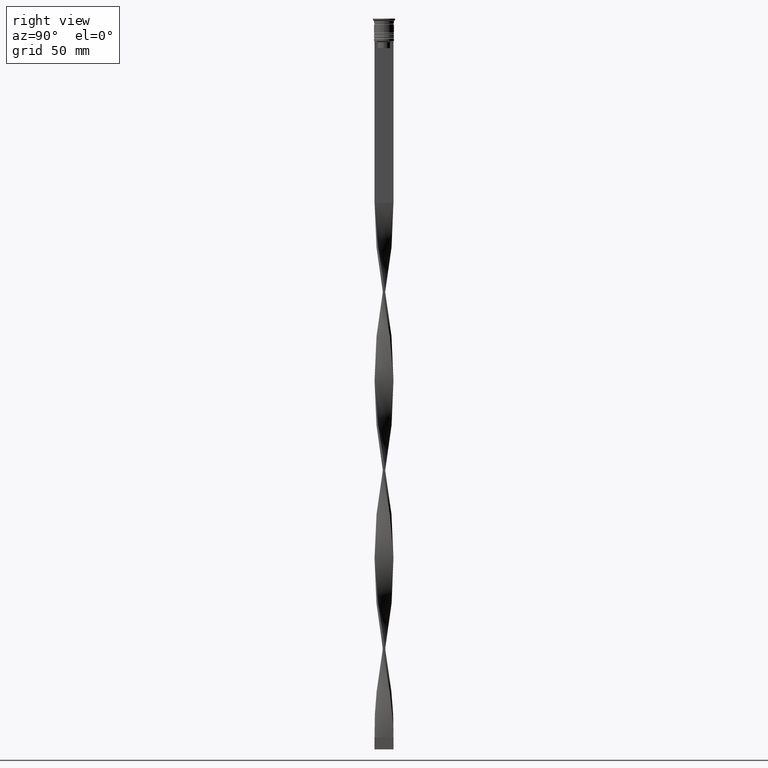
[diagram: clean part render]
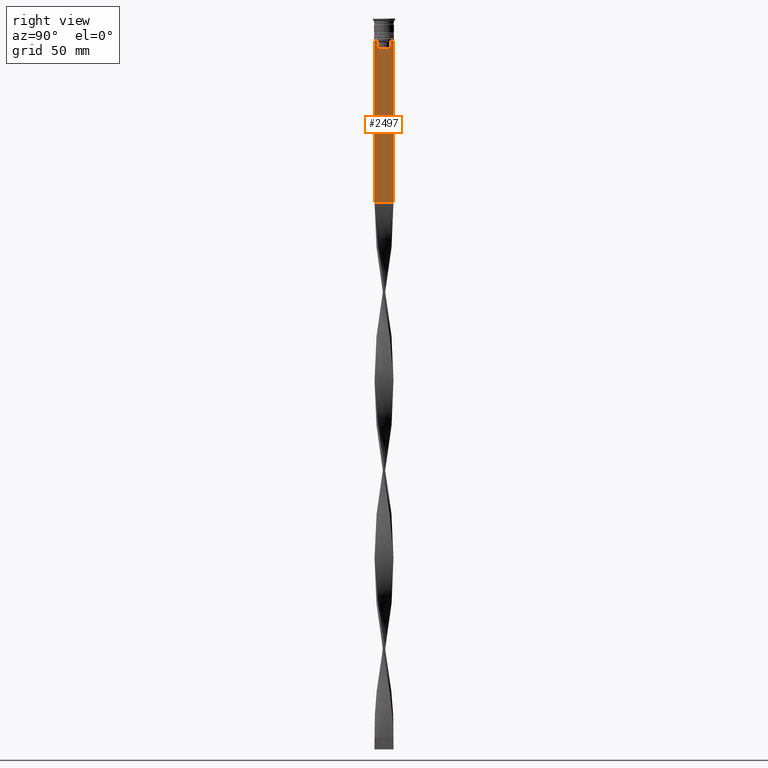
[diagram: same view with one face highlighted and labeled with its STEP entity id]
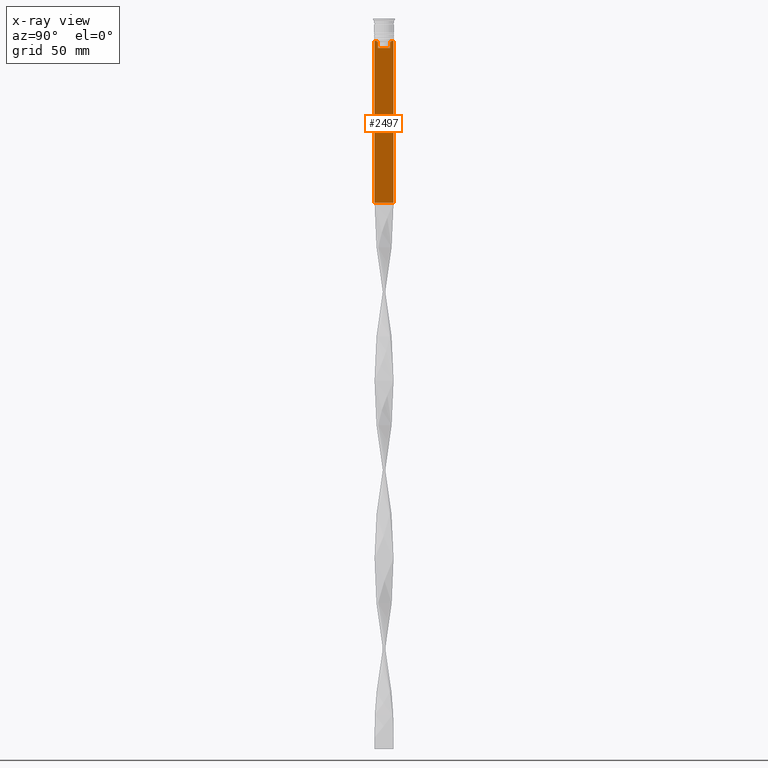
[diagram: x-ray of the same camera — body ghosted, the highlighted face saturated]
A machine part, right view. The second image highlights one B-rep face of the part: STEP entity #2497.
The next image is the same camera in x-ray: the body ghosted, the highlighted face saturated — about 0% of this face is hidden behind the body in this view.
In plain terms, the highlighted planar face has unit normal (-1, 0, 0).
Its self-contained STEP definition (entity closure, byte-faithful):
#41 = VECTOR ( 'NONE', #2729, 1000.000000000000000 ) ;
#84 = VECTOR ( 'NONE', #2466, 1000.000000000000000 ) ;
#90 = VECTOR ( 'NONE', #575, 1000.000000000000000 ) ;
#111 = LINE ( 'NONE', #2565, #3903 ) ;
#117 = VERTEX_POINT ( 'NONE', #3061 ) ;
#184 = ORIENTED_EDGE ( 'NONE', *, *, #1666, .T. ) ;
#235 = DIRECTION ( 'NONE',  ( 0.000000000000000000, -1.000000000000000000, 0.000000000000000000 ) ) ;
#252 = CARTESIAN_POINT ( 'NONE',  ( 0.5000000000000000000, -4.000000000000000000, -9.500000000000000000 ) ) ;
#260 = DIRECTION ( 'NONE',  ( -0.000000000000000000, -0.000000000000000000, 1.000000000000000000 ) ) ;
#278 = VERTEX_POINT ( 'NONE', #634 ) ;
#297 = VERTEX_POINT ( 'NONE', #651 ) ;
#314 = B_SPLINE_CURVE_WITH_KNOTS ( 'NONE', 3,
 ( #2773, #1593, #2230, #595 ),
 .UNSPECIFIED., .F., .F.,
 ( 4, 4 ),
 ( 0.005378271293598279809, 0.006090816219555997280 ),
 .UNSPECIFIED. ) ;
#317 = PLANE ( 'NONE',  #1192 ) ;
#353 = DIRECTION ( 'NONE',  ( 0.000000000000000000, 1.000000000000000000, 0.000000000000000000 ) ) ;
#535 = EDGE_CURVE ( 'NONE', #585, #815, #3777, .T. ) ;
#575 = DIRECTION ( 'NONE',  ( 0.000000000000000000, 0.000000000000000000, -1.000000000000000000 ) ) ;
#585 = VERTEX_POINT ( 'NONE', #2630 ) ;
#595 = CARTESIAN_POINT ( 'NONE',  ( 0.5000000000000000000, 2.602402735934616906, -10.00000000000000178 ) ) ;
#619 = CARTESIAN_POINT ( 'NONE',  ( 0.5000000000000000000, -2.602402735934616906, 0.000000000000000000 ) ) ;
#634 = CARTESIAN_POINT ( 'NONE',  ( 0.5000000000000000000, -4.000000000000000000, -9.500000000000000000 ) ) ;
#651 = CARTESIAN_POINT ( 'NONE',  ( 0.5000000000000000000, -4.000000000000000000, -78.00000000000000000 ) ) ;
#652 = CARTESIAN_POINT ( 'NONE',  ( 0.5000000000000000000, 4.000000000000000000, -78.00000000000000000 ) ) ;
#662 = VECTOR ( 'NONE', #705, 1000.000000000000000 ) ;
#663 = B_SPLINE_CURVE_WITH_KNOTS ( 'NONE', 3,
 ( #820, #3645, #2751, #3275 ),
 .UNSPECIFIED., .F., .F.,
 ( 4, 4 ),
 ( 0.01295151922336847811, 0.01367164596165162602 ),
 .UNSPECIFIED. ) ;
#699 = EDGE_CURVE ( 'NONE', #3089, #117, #3112, .T. ) ;
#705 = DIRECTION ( 'NONE',  ( 0.000000000000000000, 0.000000000000000000, -1.000000000000000000 ) ) ;
#711 = DIRECTION ( 'NONE',  ( 0.000000000000000000, -1.000000000000000000, 0.000000000000000000 ) ) ;
#713 = EDGE_CURVE ( 'NONE', #815, #3089, #3665, .T. ) ;
#815 = VERTEX_POINT ( 'NONE', #3798 ) ;
#820 = CARTESIAN_POINT ( 'NONE',  ( 0.5000000000000000000, -2.602402735934616906, -10.00000000000000178 ) ) ;
#930 = VECTOR ( 'NONE', #711, 1000.000000000000000 ) ;
#935 = CARTESIAN_POINT ( 'NONE',  ( 0.5000000000000000000, -3.110064308016796897, -9.500000000000000000 ) ) ;
#1009 = ORIENTED_EDGE ( 'NONE', *, *, #535, .T. ) ;
#1091 = EDGE_CURVE ( 'NONE', #3817, #278, #1466, .T. ) ;
#1188 = LINE ( 'NONE', #1751, #90 ) ;
#1192 = AXIS2_PLACEMENT_3D ( 'NONE', #1557, #3254, #2570 ) ;
#1235 = VERTEX_POINT ( 'NONE', #1238 ) ;
#1238 = CARTESIAN_POINT ( 'NONE',  ( 0.5000000000000000000, 4.000000000000000000, -9.500000000000000000 ) ) ;
#1261 = VERTEX_POINT ( 'NONE', #3737 ) ;
#1463 = ORIENTED_EDGE ( 'NONE', *, *, #699, .T. ) ;
#1466 = LINE ( 'NONE', #252, #1906 ) ;
#1502 = VECTOR ( 'NONE', #260, 1000.000000000000000 ) ;
#1529 = LINE ( 'NONE', #2713, #41 ) ;
#1553 = ORIENTED_EDGE ( 'NONE', *, *, #2025, .T. ) ;
#1557 = CARTESIAN_POINT ( 'NONE',  ( 0.5000000000000000000, -4.000000000000000000, -1.437742251701450202 ) ) ;
#1590 = EDGE_CURVE ( 'NONE', #278, #297, #1188, .T. ) ;
#1593 = CARTESIAN_POINT ( 'NONE',  ( 0.5000000000000000000, 2.941047749529105193, -9.666873766989334982 ) ) ;
#1666 = EDGE_CURVE ( 'NONE', #117, #3817, #663, .T. ) ;
#1751 = CARTESIAN_POINT ( 'NONE',  ( 0.5000000000000000000, -4.000000000000000000, -1.437742251701450202 ) ) ;
#1862 = EDGE_CURVE ( 'NONE', #1261, #585, #314, .T. ) ;
#1906 = VECTOR ( 'NONE', #235, 1000.000000000000000 ) ;
#2025 = EDGE_CURVE ( 'NONE', #1235, #1261, #3484, .T. ) ;
#2230 = CARTESIAN_POINT ( 'NONE',  ( 0.5000000000000000000, 2.771866350855961780, -9.833580160334840059 ) ) ;
#2466 = DIRECTION ( 'NONE',  ( 0.000000000000000000, -1.000000000000000000, 0.000000000000000000 ) ) ;
#2479 = ORIENTED_EDGE ( 'NONE', *, *, #1862, .T. ) ;
#2491 = CARTESIAN_POINT ( 'NONE',  ( 0.5000000000000000000, 2.649999999999995914, -12.50000000000000000 ) ) ;
#2497 = ADVANCED_FACE ( 'NONE', ( #3101 ), #317, .F. ) ;
#2565 = CARTESIAN_POINT ( 'NONE',  ( 0.5000000000000000000, -4.000000000000000000, -78.00000000000000000 ) ) ;
#2570 = DIRECTION ( 'NONE',  ( 0.000000000000000000, 0.000000000000000000, 1.000000000000000000 ) ) ;
#2630 = CARTESIAN_POINT ( 'NONE',  ( 0.5000000000000000000, 2.602402735934616906, -10.00000000000000178 ) ) ;
#2656 = ORIENTED_EDGE ( 'NONE', *, *, #3517, .T. ) ;
#2713 = CARTESIAN_POINT ( 'NONE',  ( 0.5000000000000000000, 4.000000000000000000, -1.437742251701450202 ) ) ;
#2729 = DIRECTION ( 'NONE',  ( 0.000000000000000000, 0.000000000000000000, -1.000000000000000000 ) ) ;
#2751 = CARTESIAN_POINT ( 'NONE',  ( 0.5000000000000000000, -2.941045828809988105, -9.666875663357579640 ) ) ;
#2773 = CARTESIAN_POINT ( 'NONE',  ( 0.5000000000000000000, 3.110064308016796897, -9.500000000000000000 ) ) ;
#2898 = CARTESIAN_POINT ( 'NONE',  ( 0.5000000000000000000, -2.602402735934616906, -12.50000000000000000 ) ) ;
#2956 = VERTEX_POINT ( 'NONE', #652 ) ;
#3061 = CARTESIAN_POINT ( 'NONE',  ( 0.5000000000000000000, -2.602402735934616906, -10.00000000000000178 ) ) ;
#3089 = VERTEX_POINT ( 'NONE', #2898 ) ;
#3101 = FACE_OUTER_BOUND ( 'NONE', #3344, .T. ) ;
#3112 = LINE ( 'NONE', #619, #1502 ) ;
#3171 = ORIENTED_EDGE ( 'NONE', *, *, #1091, .T. ) ;
#3254 = DIRECTION ( 'NONE',  ( -1.000000000000000000, 0.000000000000000000, 0.000000000000000000 ) ) ;
#3275 = CARTESIAN_POINT ( 'NONE',  ( 0.5000000000000000000, -3.110064308016796897, -9.500000000000000000 ) ) ;
#3326 = EDGE_CURVE ( 'NONE', #1235, #2956, #1529, .T. ) ;
#3344 = EDGE_LOOP ( 'NONE', ( #1553, #2479, #1009, #3397, #1463, #184, #3171, #3673, #2656, #3785 ) ) ;
#3397 = ORIENTED_EDGE ( 'NONE', *, *, #713, .T. ) ;
#3478 = CARTESIAN_POINT ( 'NONE',  ( 0.5000000000000000000, 2.602402735934616906, 0.000000000000000000 ) ) ;
#3484 = LINE ( 'NONE', #3501, #930 ) ;
#3501 = CARTESIAN_POINT ( 'NONE',  ( 0.5000000000000000000, -4.000000000000000000, -9.500000000000000000 ) ) ;
#3517 = EDGE_CURVE ( 'NONE', #297, #2956, #111, .T. ) ;
#3645 = CARTESIAN_POINT ( 'NONE',  ( 0.5000000000000000000, -2.771864055700302032, -9.833582414266679450 ) ) ;
#3665 = LINE ( 'NONE', #2491, #84 ) ;
#3673 = ORIENTED_EDGE ( 'NONE', *, *, #1590, .T. ) ;
#3737 = CARTESIAN_POINT ( 'NONE',  ( 0.5000000000000000000, 3.110064308016796897, -9.500000000000000000 ) ) ;
#3777 = LINE ( 'NONE', #3478, #662 ) ;
#3785 = ORIENTED_EDGE ( 'NONE', *, *, #3326, .F. ) ;
#3798 = CARTESIAN_POINT ( 'NONE',  ( 0.5000000000000000000, 2.602402735934616906, -12.50000000000000000 ) ) ;
#3817 = VERTEX_POINT ( 'NONE', #935 ) ;
#3903 = VECTOR ( 'NONE', #353, 1000.000000000000000 ) ;